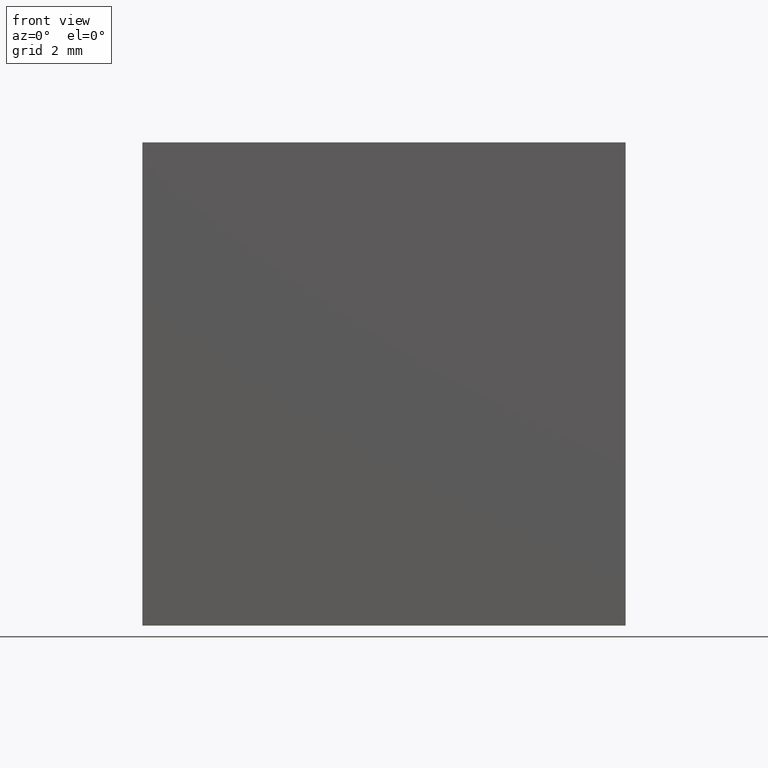
[diagram: clean part render]
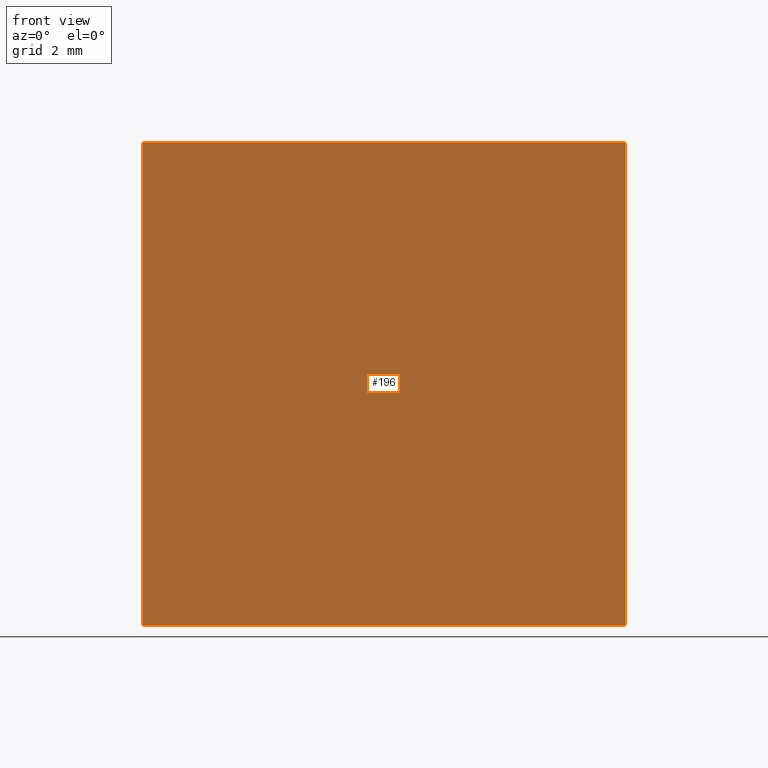
[diagram: same view with one face highlighted and labeled with its STEP entity id]
A machine part, front view. The second image highlights one B-rep face of the part: STEP entity #196.
In plain terms, the highlighted planar face has unit normal (0, 1, 0).
Its self-contained STEP definition (entity closure, byte-faithful):
#26=FACE_OUTER_BOUND('',#38,.T.);
#38=EDGE_LOOP('',(#171,#172,#173,#174));
#51=LINE('',#287,#75);
#55=LINE('',#295,#79);
#58=LINE('',#301,#82);
#61=LINE('',#306,#85);
#75=VECTOR('',#236,13.);
#79=VECTOR('',#242,13.);
#82=VECTOR('',#247,13.);
#85=VECTOR('',#252,13.);
#95=VERTEX_POINT('',#285);
#96=VERTEX_POINT('',#286);
#99=VERTEX_POINT('',#294);
#101=VERTEX_POINT('',#300);
#115=EDGE_CURVE('',#95,#96,#51,.T.);
#119=EDGE_CURVE('',#96,#99,#55,.T.);
#122=EDGE_CURVE('',#99,#101,#58,.T.);
#125=EDGE_CURVE('',#101,#95,#61,.T.);
#171=ORIENTED_EDGE('',*,*,#125,.T.);
#172=ORIENTED_EDGE('',*,*,#115,.T.);
#173=ORIENTED_EDGE('',*,*,#119,.T.);
#174=ORIENTED_EDGE('',*,*,#122,.T.);
#185=PLANE('',#209);
#196=ADVANCED_FACE('',(#26),#185,.F.);
#209=AXIS2_PLACEMENT_3D('',#309,#256,#257);
#236=DIRECTION('',(0.,0.,-1.));
#242=DIRECTION('',(1.,0.,0.));
#247=DIRECTION('',(0.,0.,1.));
#252=DIRECTION('',(-1.,0.,0.));
#256=DIRECTION('center_axis',(0.,1.,0.));
#257=DIRECTION('ref_axis',(0.,0.,1.));
#285=CARTESIAN_POINT('',(-6.5,0.,6.5));
#286=CARTESIAN_POINT('',(-6.5,0.,-6.5));
#287=CARTESIAN_POINT('',(-6.5,0.,6.5));
#294=CARTESIAN_POINT('',(6.5,0.,-6.5));
#295=CARTESIAN_POINT('',(-6.5,0.,-6.5));
#300=CARTESIAN_POINT('',(6.5,0.,6.5));
#301=CARTESIAN_POINT('',(6.5,0.,-6.5));
#306=CARTESIAN_POINT('',(6.5,0.,6.5));
#309=CARTESIAN_POINT('Origin',(0.,0.,0.));